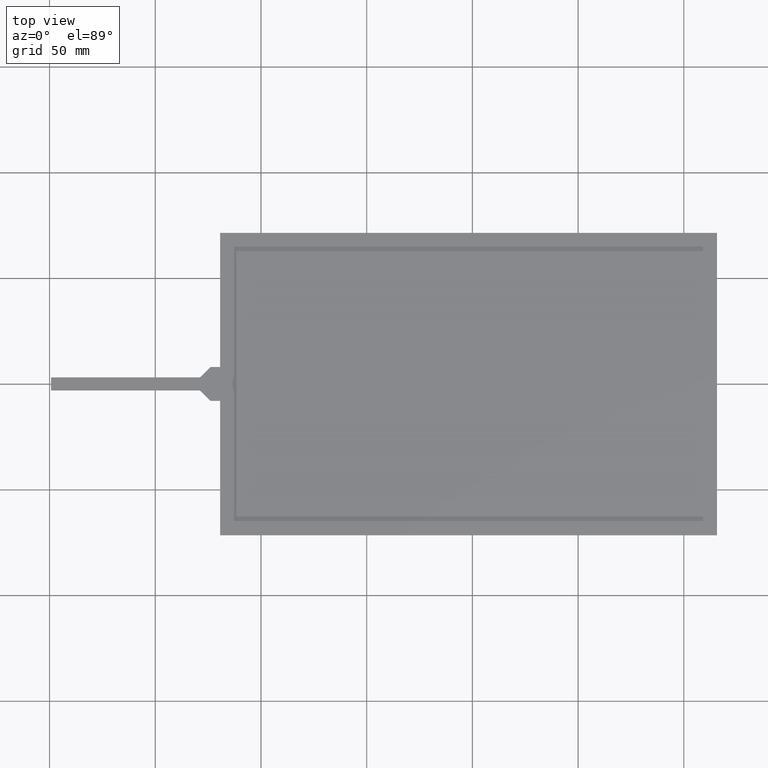
[diagram: clean part render]
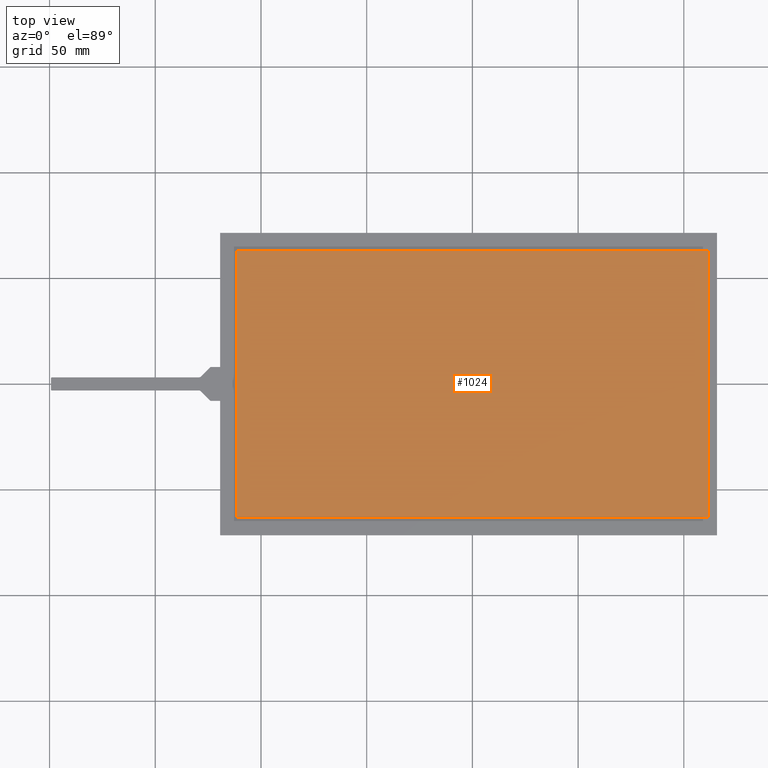
[diagram: same view with one face highlighted and labeled with its STEP entity id]
A machine part, top view. The second image highlights one B-rep face of the part: STEP entity #1024.
In plain terms, the highlighted planar face has unit normal (0, 0, 1).
Its self-contained STEP definition (entity closure, byte-faithful):
#92=PLANE('',#1107);
#143=FACE_OUTER_BOUND('',#197,.T.);
#197=EDGE_LOOP('',(#961,#962,#963,#964));
#289=LINE('',#1572,#415);
#293=LINE('',#1580,#419);
#296=LINE('',#1586,#422);
#299=LINE('',#1591,#425);
#415=VECTOR('',#1297,10.);
#419=VECTOR('',#1303,10.);
#422=VECTOR('',#1308,10.);
#425=VECTOR('',#1313,10.);
#531=VERTEX_POINT('',#1570);
#532=VERTEX_POINT('',#1571);
#535=VERTEX_POINT('',#1579);
#537=VERTEX_POINT('',#1585);
#657=EDGE_CURVE('',#531,#532,#289,.T.);
#661=EDGE_CURVE('',#535,#531,#293,.T.);
#664=EDGE_CURVE('',#537,#535,#296,.T.);
#667=EDGE_CURVE('',#532,#537,#299,.T.);
#961=ORIENTED_EDGE('',*,*,#657,.T.);
#962=ORIENTED_EDGE('',*,*,#667,.T.);
#963=ORIENTED_EDGE('',*,*,#664,.T.);
#964=ORIENTED_EDGE('',*,*,#661,.T.);
#1024=ADVANCED_FACE('',(#143),#92,.T.);
#1107=AXIS2_PLACEMENT_3D('',#1643,#1359,#1360);
#1297=DIRECTION('',(1.,1.19368123783728E-16,0.));
#1303=DIRECTION('',(4.23681866608424E-16,-1.,0.));
#1308=DIRECTION('',(-1.,-5.9684061891864E-16,0.));
#1313=DIRECTION('',(-2.82454577738949E-16,1.,0.));
#1359=DIRECTION('center_axis',(0.,0.,1.));
#1360=DIRECTION('ref_axis',(1.,0.,0.));
#1570=CARTESIAN_POINT('',(-111.61,-62.8899999999999,0.));
#1571=CARTESIAN_POINT('',(111.61,-62.8899999999999,0.));
#1572=CARTESIAN_POINT('',(-56.71,-62.8899999999999,0.));
#1579=CARTESIAN_POINT('',(-111.61,62.8899999999999,0.));
#1580=CARTESIAN_POINT('',(-111.61,31.445,0.));
#1585=CARTESIAN_POINT('',(111.61,62.8900000000001,0.));
#1586=CARTESIAN_POINT('',(54.9,62.89,0.));
#1591=CARTESIAN_POINT('',(111.61,-31.4449999999999,0.));
#1643=CARTESIAN_POINT('Origin',(-1.80999999999999,7.99360577730113E-14,
0.));